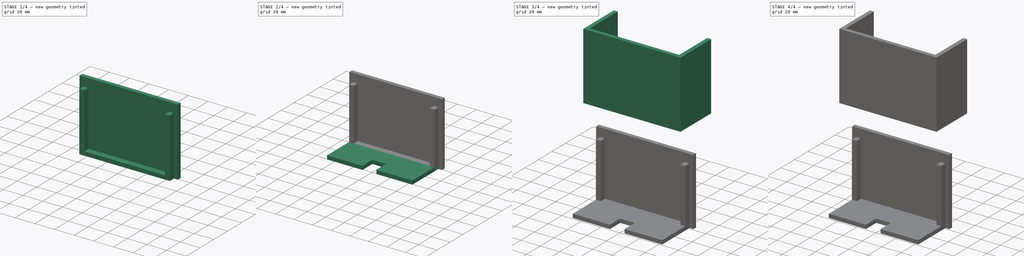
[diagram: build sequence overview — one tinted view per stage of 4, left to right]
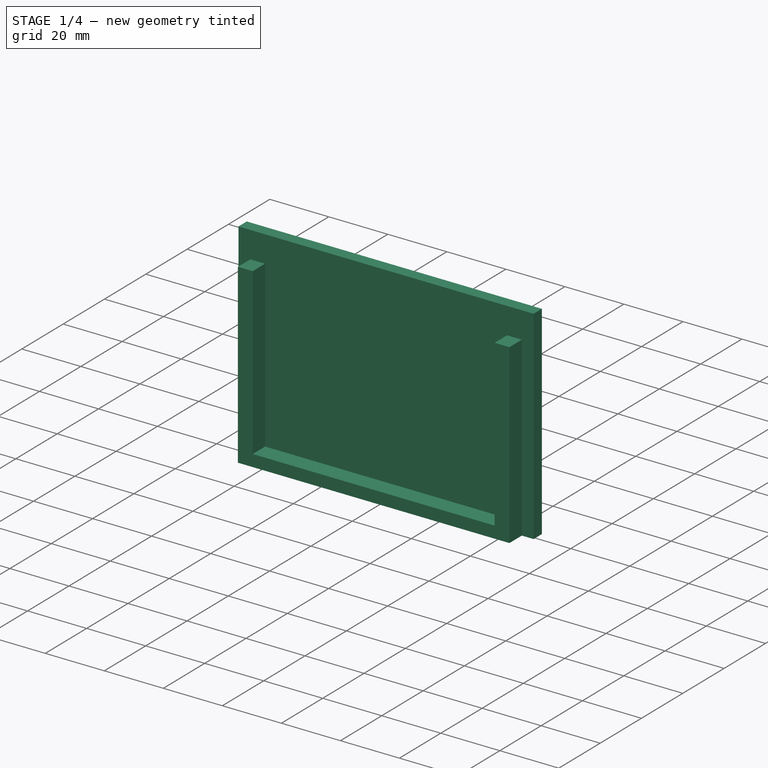
[diagram: stage 1 of 4 — iso view after this stage's code; geometry added in this stage tinted green]
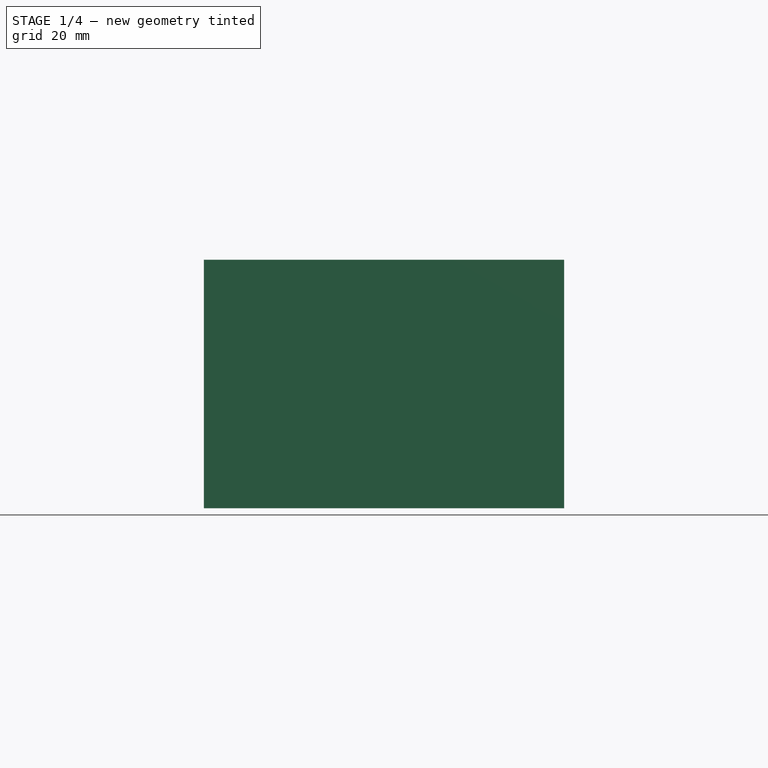
[diagram: stage 1 of 4 — front view after this stage's code; geometry added in this stage tinted green]
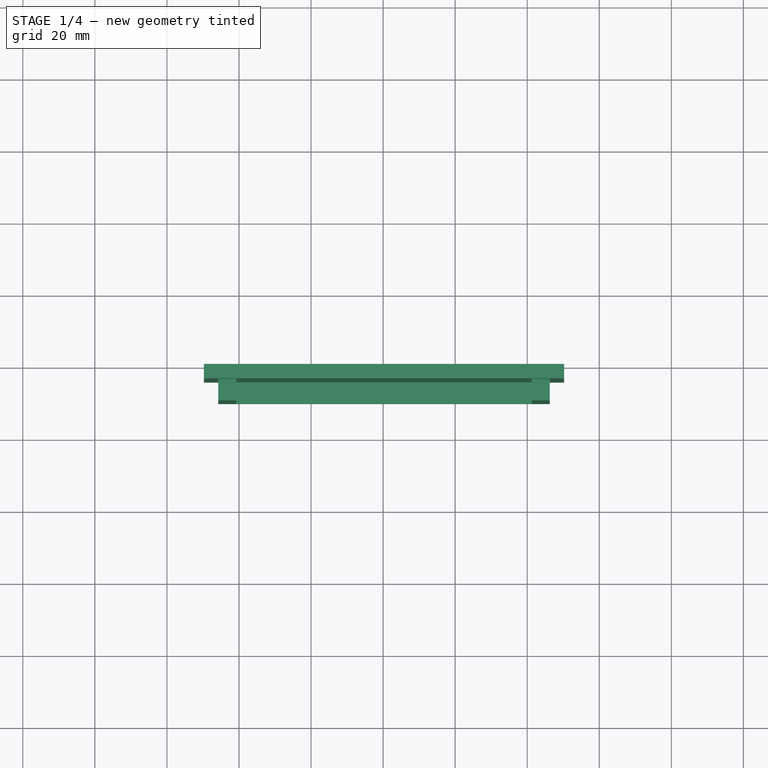
[diagram: stage 1 of 4 — top view after this stage's code; geometry added in this stage tinted green]
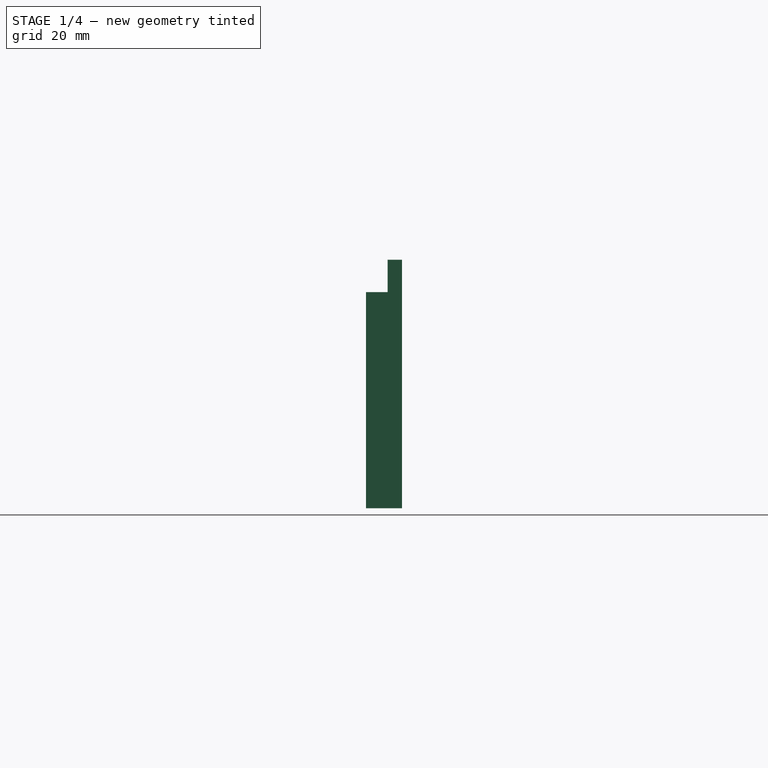
[diagram: stage 1 of 4 — right view after this stage's code; geometry added in this stage tinted green]
FCSTD DOCUMENT  (FreeCAD 0.18.4R)
Label: Arduino
License: All rights reserved
LicenseURL: http://en.wikipedia.org/wiki/All_rights_reserved
objects: Sketcher::SketchObject×9, PartDesign::Pad×5, PartDesign::Pocket×4, PartDesign::Body×2
note: 29 computed .brp shape members not serialized (recipe doc carries the construction recipe); baked Part::Feature solids carry a one-line shape summary decoded from their .brp

FEATURE [PartDesign::Body] Body  label="MainCase"
  Group = -> [Sketch,Pad,Sketch001,Pocket,Sketch002,Pad001,Sketch003,Pocket001,Sketch004,Pocket002]
  Origin = -> Origin
  Tip = -> Pocket002
FEATURE [Sketcher::SketchObject] Sketch005
  MapMode = 5
  Placement = pos=(0,0,0) rot=(1,0,0;1.5708rad)
  Support = -> [XZ_Plane001]
  sketch-geometry (4):
    g0: LineSegment StartX=50.249 StartY=-28.5383 StartZ=0 EndX=-49.751 EndY=-28.5383 EndZ=0
    g1: LineSegment StartX=-49.751 StartY=-28.5383 StartZ=0 EndX=-49.751 EndY=-97.5383 EndZ=0
    g2: LineSegment StartX=-49.751 StartY=-97.5383 StartZ=0 EndX=50.249 EndY=-97.5383 EndZ=0
    g3: LineSegment StartX=50.249 StartY=-97.5383 StartZ=0 EndX=50.249 EndY=-28.5383 EndZ=0
  constraints (10):
    c: Coincident(g0,g1)
    c: Coincident(g1,g2)
    c: Coincident(g2,g3)
    c: Coincident(g3,g0)
    c: Horizontal(g0)
    c: Horizontal(g2)
    c: Vertical(g1)
    c: Vertical(g3)
    c: DistanceX(g0,g0) = 100
    c: DistanceY(g1,g1) = 69
FEATURE [PartDesign::Pad] Pad002  label="TopCover"
  Length = 4
  Length2 = 100
  Placement = pos=(0,0,0) rot=(1,0,0;1.5708rad)
  Profile = -> Sketch005
  Type = 0
FEATURE [Sketcher::SketchObject] Sketch006
  ExternalGeometry = -> [Pad002]
  MapMode = 5
  Placement = pos=(0,-4,2.7e-15) rot=(1,0,0;1.5708rad)
  Support = -> [Pad002]
  sketch-geometry (12):
    g0: LineSegment StartX=-45.751 StartY=-37.5383 StartZ=0 EndX=-40.751 EndY=-37.5383 EndZ=0
    g1: LineSegment StartX=-40.751 StartY=-37.5383 StartZ=0 EndX=-40.751 EndY=-97.5383 EndZ=0
    g2: LineSegment StartX=-40.751 StartY=-97.5383 StartZ=0 EndX=-45.751 EndY=-97.5383 EndZ=0
    g3: LineSegment StartX=-45.751 StartY=-97.5383 StartZ=0 EndX=-45.751 EndY=-37.5383 EndZ=0
    g4: LineSegment StartX=41.249 StartY=-37.5383 StartZ=0 EndX=46.249 EndY=-37.5383 EndZ=0
    g5: LineSegment StartX=46.249 StartY=-37.5383 StartZ=0 EndX=46.249 EndY=-97.5383 EndZ=0
    g6: LineSegment StartX=46.249 StartY=-97.5383 StartZ=0 EndX=41.249 EndY=-97.5383 EndZ=0
    g7: LineSegment StartX=41.249 StartY=-97.5383 StartZ=0 EndX=41.249 EndY=-37.5383 EndZ=0
    g8: LineSegment StartX=-40.751 StartY=-97.5383 StartZ=0 EndX=41.249 EndY=-97.5383 EndZ=0
    g9: LineSegment StartX=41.249 StartY=-97.5383 StartZ=0 EndX=41.249 EndY=-93.5383 EndZ=0
    g10: LineSegment StartX=41.249 StartY=-93.5383 StartZ=0 EndX=-40.751 EndY=-93.5383 EndZ=0
    g11: LineSegment StartX=-40.751 StartY=-93.5383 StartZ=0 EndX=-40.751 EndY=-97.5383 EndZ=0
  constraints (35):
    c: Coincident(g0,g1)
    c: Coincident(g1,g2)
    c: Coincident(g2,g3)
    c: Coincident(g3,g0)
    c: Horizontal(g2)
    c: Vertical(g1)
    c: Vertical(g3)
    c: PointOnObject(g1,g-6)
    c: DistanceX(g0,g0) = 5
    c: DistanceX(g-4,g0) = 4
    c: Coincident(g4,g5)
    c: Coincident(g5,g6)
    c: Coincident(g6,g7)
    c: Coincident(g7,g4)
    c: Horizontal(g4)
    c: Horizontal(g6)
    c: Vertical(g5)
    c: Vertical(g7)
    c: PointOnObject(g5,g-6)
    c: Equal(g4,g0)
    c: DistanceX(g4,g-5) = 4
    c: Horizontal(g0,g0)
    c: Horizontal(g4,g0)
    c: DistanceY(g0,g-4) = 9
    c: Coincident(g8,g9)
    c: Coincident(g9,g10)
    c: Coincident(g10,g11)
    c: Coincident(g11,g8)
    c: Horizontal(g8)
    c: Horizontal(g10)
    c: Vertical(g9)
    c: Vertical(g11)
    c: Coincident(g8,g1)
    c: PointOnObject(g9,g7)
    c: DistanceY(g1,g10) = 4
FEATURE [PartDesign::Pad] Pad003  label="SideShallowCovers"
  BaseFeature = -> Pad002
  Length = 6
  Length2 = 100
  Placement = pos=(0,0,0) rot=(1,0,0;1.5708rad)
  Profile = -> Sketch006
  Type = 0
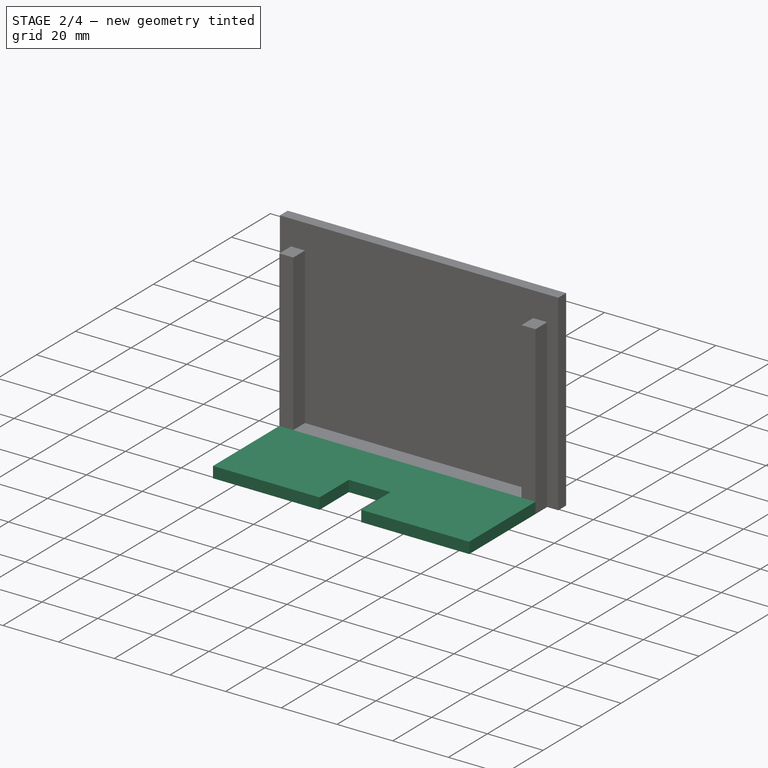
[diagram: stage 2 of 4 — iso view after this stage's code; geometry added in this stage tinted green]
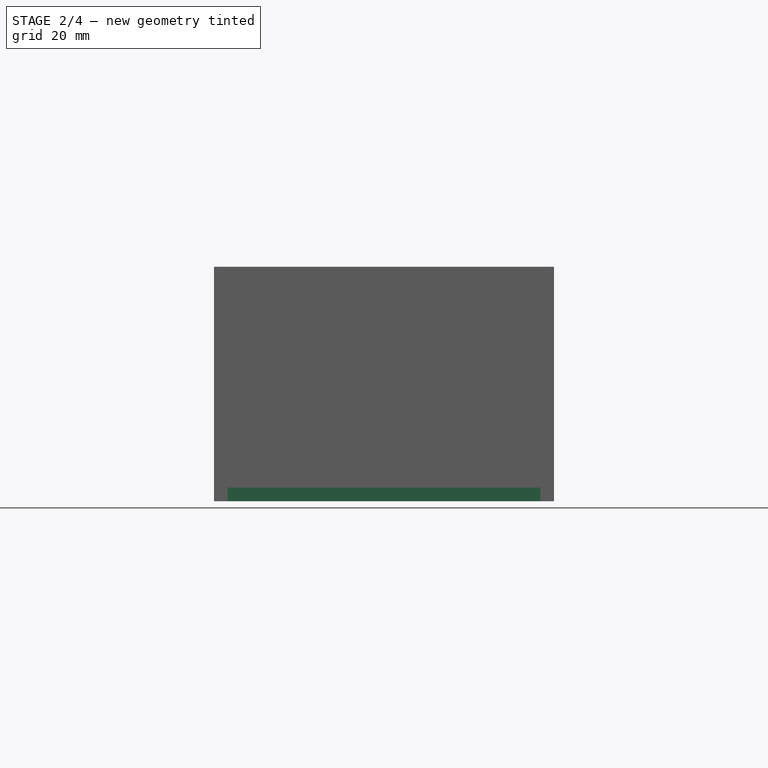
[diagram: stage 2 of 4 — front view after this stage's code; geometry added in this stage tinted green]
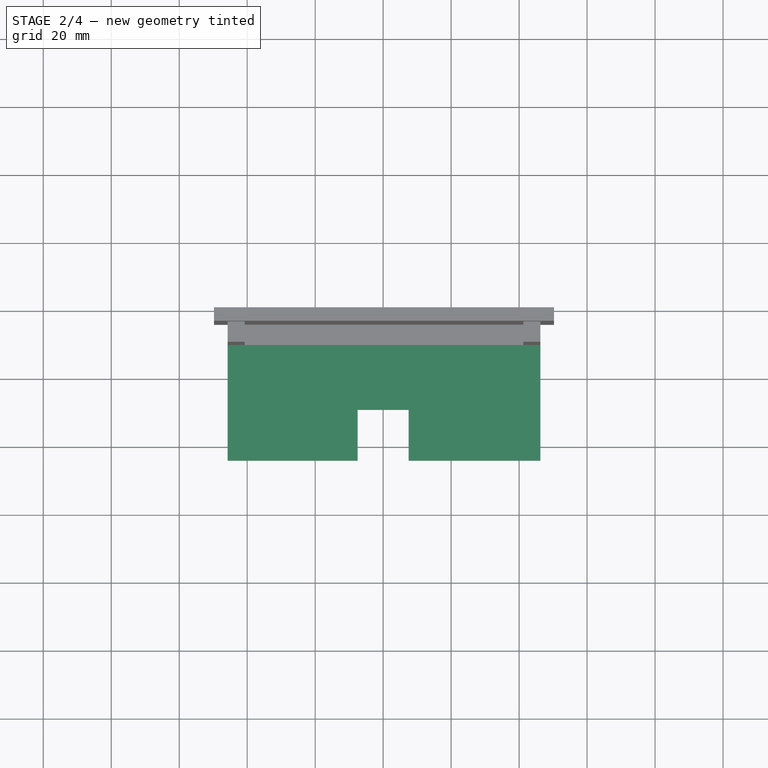
[diagram: stage 2 of 4 — top view after this stage's code; geometry added in this stage tinted green]
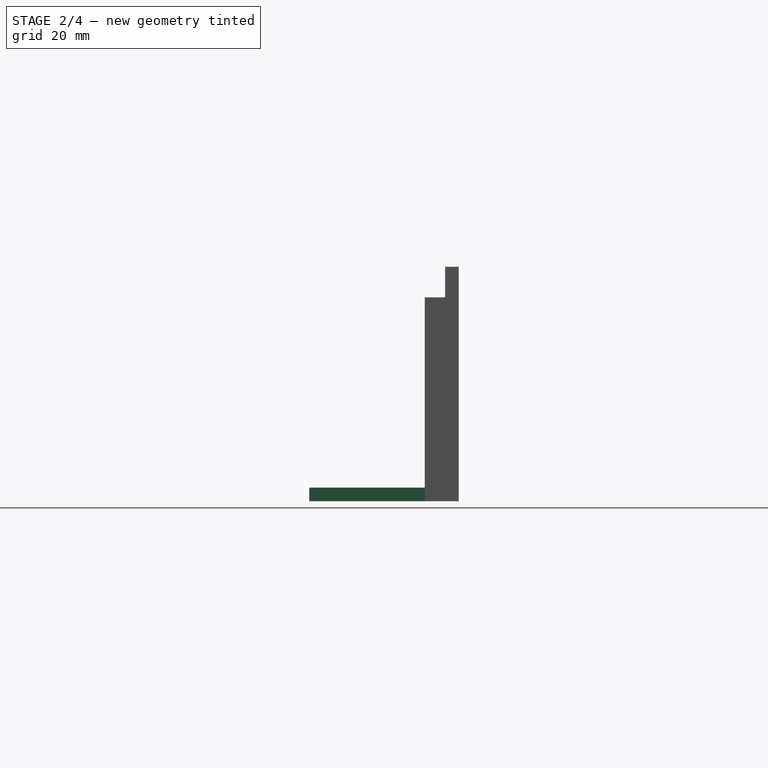
[diagram: stage 2 of 4 — right view after this stage's code; geometry added in this stage tinted green]
FEATURE [Sketcher::SketchObject] Sketch007
  ExternalGeometry = -> [Pad003]
  MapMode = 5
  Placement = pos=(0,-10,1.23e-14) rot=(1,0,0;1.5708rad)
  Support = -> [Pad003]
  sketch-geometry (4):
    g0: LineSegment StartX=-45.751 StartY=-97.5383 StartZ=0 EndX=46.249 EndY=-97.5383 EndZ=0
    g1: LineSegment StartX=46.249 StartY=-97.5383 StartZ=0 EndX=46.249 EndY=-93.5383 EndZ=0
    g2: LineSegment StartX=46.249 StartY=-93.5383 StartZ=0 EndX=-45.751 EndY=-93.5383 EndZ=0
    g3: LineSegment StartX=-45.751 StartY=-93.5383 StartZ=0 EndX=-45.751 EndY=-97.5383 EndZ=0
  constraints (11):
    c: Coincident(g0,g1)
    c: Coincident(g1,g2)
    c: Coincident(g2,g3)
    c: Coincident(g3,g0)
    c: Horizontal(g0)
    c: Horizontal(g2)
    c: Vertical(g1)
    c: Vertical(g3)
    c: Coincident(g0,g-3)
    c: PointOnObject(g1,g-6)
    c: Horizontal(g1,g-4)
FEATURE [PartDesign::Pad] Pad004  label="BackCover"
  BaseFeature = -> Pad003
  Length = 34
  Length2 = 100
  Placement = pos=(0,0,0) rot=(1,0,0;1.5708rad)
  Profile = -> Sketch007
  Type = 0
FEATURE [Sketcher::SketchObject] Sketch008
  ExternalGeometry = -> [Pad004]
  MapMode = 5
  Placement = pos=(0,-44,7.82e-14) rot=(1,0,0;1.5708rad)
  Support = -> [Pad004]
  sketch-geometry (4):
    g0: LineSegment StartX=-7.5 StartY=-93.5383 StartZ=0 EndX=7.5 EndY=-93.5383 EndZ=0
    g1: LineSegment StartX=7.5 StartY=-93.5383 StartZ=0 EndX=7.5 EndY=-97.5383 EndZ=0
    g2: LineSegment StartX=7.5 StartY=-97.5383 StartZ=0 EndX=-7.5 EndY=-97.5383 EndZ=0
    g3: LineSegment StartX=-7.5 StartY=-97.5383 StartZ=0 EndX=-7.5 EndY=-93.5383 EndZ=0
  constraints (11):
    c: Coincident(g0,g1)
    c: Coincident(g1,g2)
    c: Coincident(g2,g3)
    c: Coincident(g3,g0)
    c: Horizontal(g2)
    c: Vertical(g1)
    c: Vertical(g3)
    c: PointOnObject(g0,g-3)
    c: PointOnObject(g1,g-4)
    c: Symmetric(g0,g0,g-2)
    c: DistanceX(g0,g0) = 15
FEATURE [PartDesign::Pocket] Pocket003  label="WholeForCables"
  BaseFeature = -> Pad004
  Length = 15
  Length2 = 100
  Placement = pos=(0,0,0) rot=(1,0,0;1.5708rad)
  Profile = -> Sketch008
  Type = 0
FEATURE [PartDesign::Body] Body001  label="Cover"
  Group = -> [Sketch005,Pad002,Sketch006,Pad003,Sketch007,Pad004,Sketch008,Pocket003]
  Origin = -> Origin001
  Placement = pos=(3.4e-15,26,-27) rot=(0,1,0;3.14159rad)
  Tip = -> Pocket003
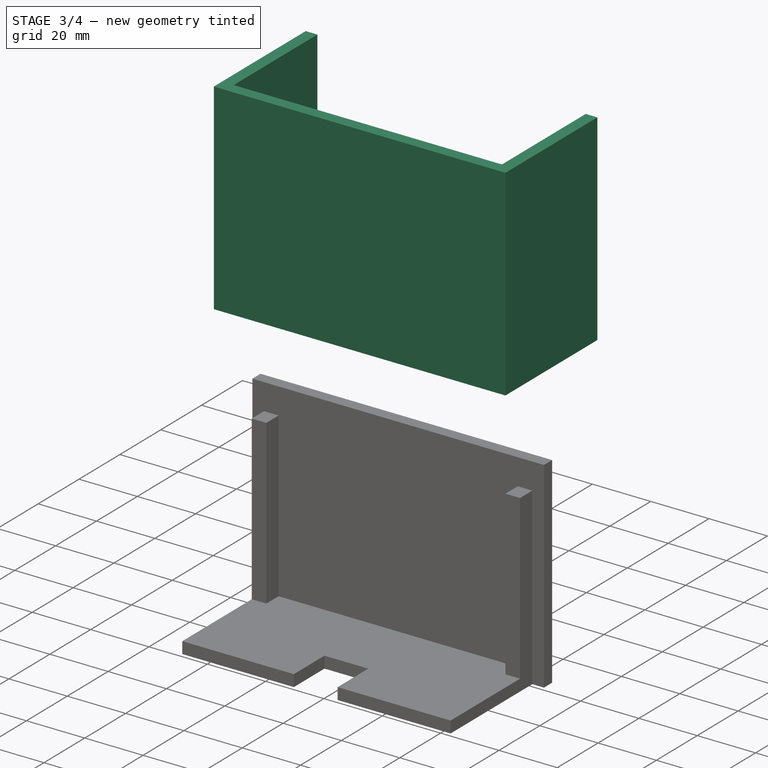
[diagram: stage 3 of 4 — iso view after this stage's code; geometry added in this stage tinted green]
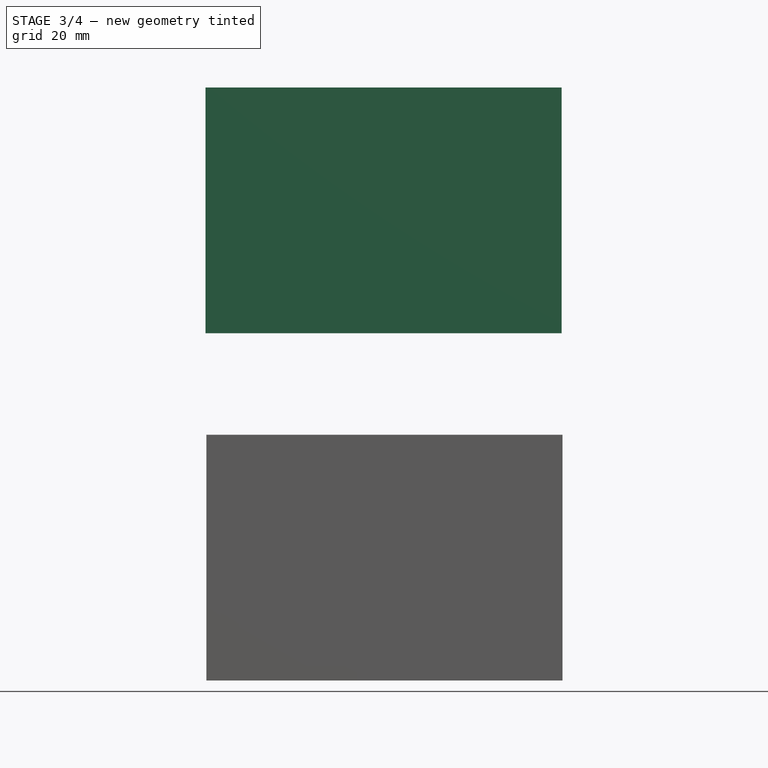
[diagram: stage 3 of 4 — front view after this stage's code; geometry added in this stage tinted green]
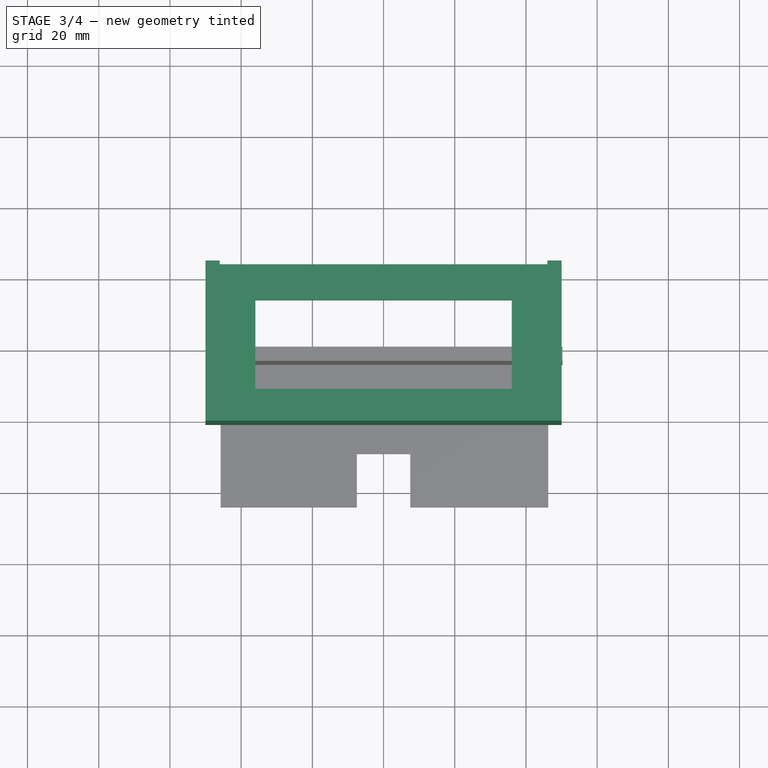
[diagram: stage 3 of 4 — top view after this stage's code; geometry added in this stage tinted green]
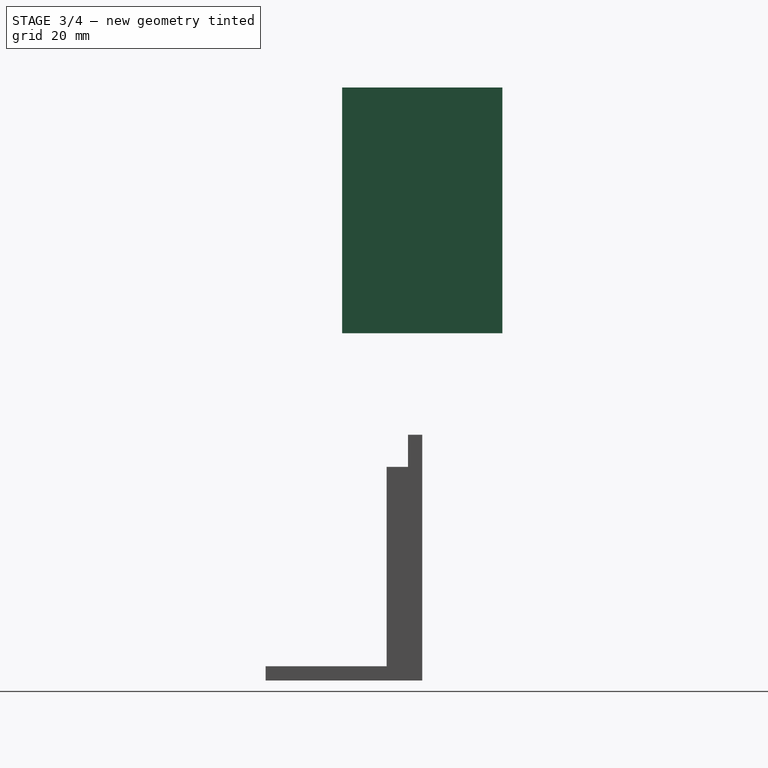
[diagram: stage 3 of 4 — right view after this stage's code; geometry added in this stage tinted green]
FEATURE [Sketcher::SketchObject] Sketch
  MapMode = 5
  Support = -> [XY_Plane]
  sketch-geometry (4):
    g0: LineSegment StartX=-50 StartY=22.5 StartZ=0 EndX=50 EndY=22.5 EndZ=0
    g1: LineSegment StartX=50 StartY=22.5 StartZ=0 EndX=50 EndY=-22.5 EndZ=0
    g2: LineSegment StartX=50 StartY=-22.5 StartZ=0 EndX=-50 EndY=-22.5 EndZ=0
    g3: LineSegment StartX=-50 StartY=-22.5 StartZ=0 EndX=-50 EndY=22.5 EndZ=0
  constraints (10):
    c: Coincident(g0,g1)
    c: Coincident(g1,g2)
    c: Coincident(g2,g3)
    c: Coincident(g3,g0)
    c: Horizontal(g2)
    c: Vertical(g1)
    c: DistanceX(g0,g0) = 100
    c: DistanceY(g1,g1) = 45
    c: Symmetric(g0,g0,g-2)
    c: Symmetric(g0,g2,g-1)
FEATURE [PartDesign::Pad] Pad  label="ScreenFrame"
  Length = 9
  Length2 = 100
  Profile = -> Sketch
  Type = 0
FEATURE [Sketcher::SketchObject] Sketch001
  MapMode = 5
  Placement = pos=(0,0,9) rot=(0,0,1;0rad)
  Support = -> [Pad]
  sketch-geometry (4):
    g0: LineSegment StartX=-36 StartY=12.5 StartZ=0 EndX=36 EndY=12.5 EndZ=0
    g1: LineSegment StartX=36 StartY=12.5 StartZ=0 EndX=36 EndY=-12.5 EndZ=0
    g2: LineSegment StartX=36 StartY=-12.5 StartZ=0 EndX=-36 EndY=-12.5 EndZ=0
    g3: LineSegment StartX=-36 StartY=-12.5 StartZ=0 EndX=-36 EndY=12.5 EndZ=0
  constraints (10):
    c: Coincident(g0,g1)
    c: Coincident(g1,g2)
    c: Coincident(g2,g3)
    c: Coincident(g3,g0)
    c: Horizontal(g2)
    c: Vertical(g1)
    c: DistanceX(g0,g0) = 72
    c: DistanceY(g3,g3) = 25
    c: Symmetric(g0,g0,g-2)
    c: Symmetric(g2,g0,g-1)
FEATURE [PartDesign::Pocket] Pocket  label="ScreenHole"
  BaseFeature = -> Pad
  Length = 5
  Length2 = 100
  Profile = -> Sketch001
  Type = 1
FEATURE [Sketcher::SketchObject] Sketch002
  ExternalGeometry = -> [Pocket]
  MapMode = 5
  Placement = pos=(0,0,9) rot=(0,0,1;0rad)
  Support = -> [Pocket]
  sketch-geometry (12):
    g0: LineSegment StartX=-50 StartY=-22.5 StartZ=0 EndX=50 EndY=-22.5 EndZ=0
    g1: LineSegment StartX=50 StartY=-22.5 StartZ=0 EndX=50 EndY=-18.5 EndZ=0
    g2: LineSegment StartX=50 StartY=-18.5 StartZ=0 EndX=-50 EndY=-18.5 EndZ=0
    g3: LineSegment StartX=-50 StartY=-18.5 StartZ=0 EndX=-50 EndY=-22.5 EndZ=0
    g4: LineSegment StartX=-50 StartY=22.5 StartZ=0 EndX=-46 EndY=22.5 EndZ=0
    g5: LineSegment StartX=-46 StartY=22.5 StartZ=0 EndX=-46 EndY=-18.5 EndZ=0
    g6: LineSegment StartX=-46 StartY=-18.5 StartZ=0 EndX=-50 EndY=-18.5 EndZ=0
    g7: LineSegment StartX=-50 StartY=-18.5 StartZ=0 EndX=-50 EndY=22.5 EndZ=0
    g8: LineSegment StartX=50 StartY=22.5 StartZ=0 EndX=46 EndY=22.5 EndZ=0
    g9: LineSegment StartX=46 StartY=22.5 StartZ=0 EndX=46 EndY=-18.5 EndZ=0
    g10: LineSegment StartX=46 StartY=-18.5 StartZ=0 EndX=50 EndY=-18.5 EndZ=0
    g11: LineSegment StartX=50 StartY=-18.5 StartZ=0 EndX=50 EndY=22.5 EndZ=0
  constraints (31):
    c: Coincident(g0,g1)
    c: Coincident(g1,g2)
    c: Coincident(g2,g3)
    c: Coincident(g3,g0)
    c: Horizontal(g0)
    c: Horizontal(g2)
    c: Vertical(g1)
    c: Vertical(g3)
    c: Coincident(g-5,g0)
    c: DistanceY(g3,g3) = 4
    c: Coincident(g4,g5)
    c: Coincident(g5,g6)
    c: Coincident(g6,g7)
    c: Coincident(g7,g4)
    c: Horizontal(g4)
    c: Horizontal(g6)
    c: Vertical(g5)
    c: Vertical(g7)
    c: Coincident(g8,g9)
    c: Coincident(g9,g10)
    c: Coincident(g10,g11)
    c: Coincident(g11,g8)
    c: Horizontal(g8)
    c: Horizontal(g10)
    c: Vertical(g9)
    c: Coincident(g1,g10)
    c: Coincident(g6,g2)
    c: DistanceX(g4,g4) = 4
    c: DistanceX(g8,g8) = 4
    c: Coincident(g4,g-4)
    c: Coincident(g8,g-5)
FEATURE [PartDesign::Pad] Pad001  label="BottomAndSideCovers"
  BaseFeature = -> Pocket
  Length = 60
  Length2 = 100
  Profile = -> Sketch002
  Type = 0
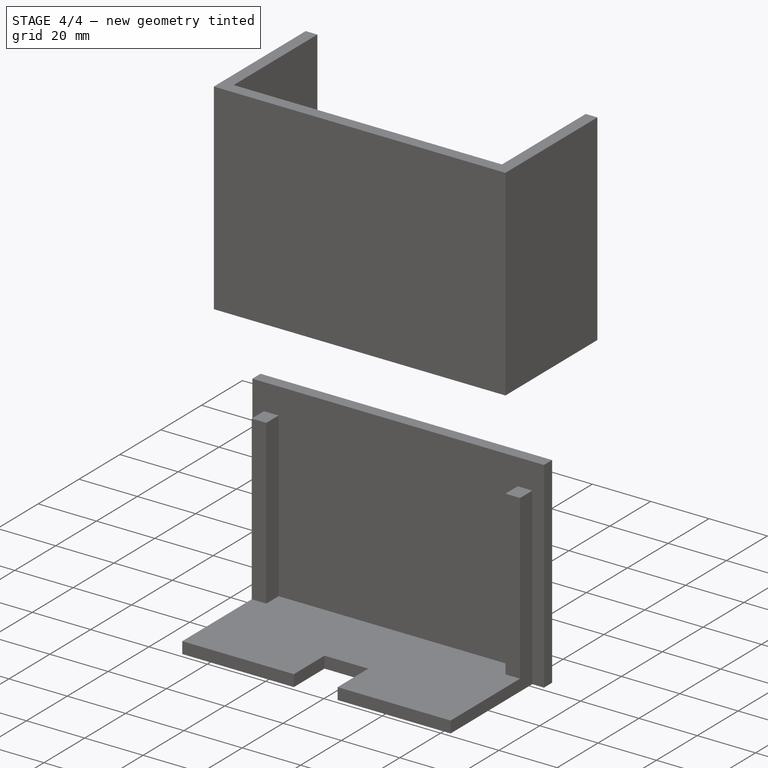
[diagram: stage 4 of 4 — iso view after this stage's code; geometry added in this stage tinted green]
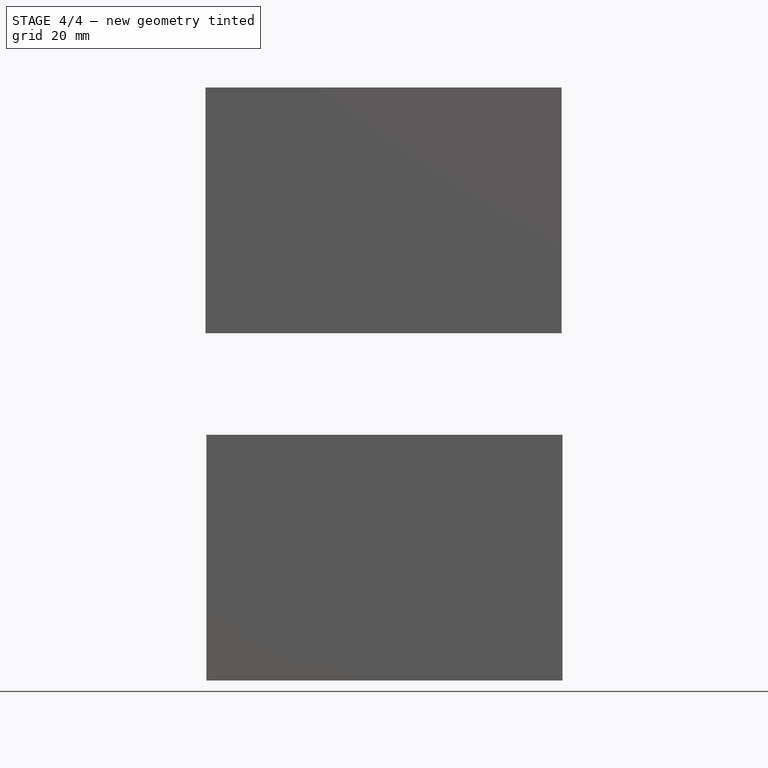
[diagram: stage 4 of 4 — front view after this stage's code; geometry added in this stage tinted green]
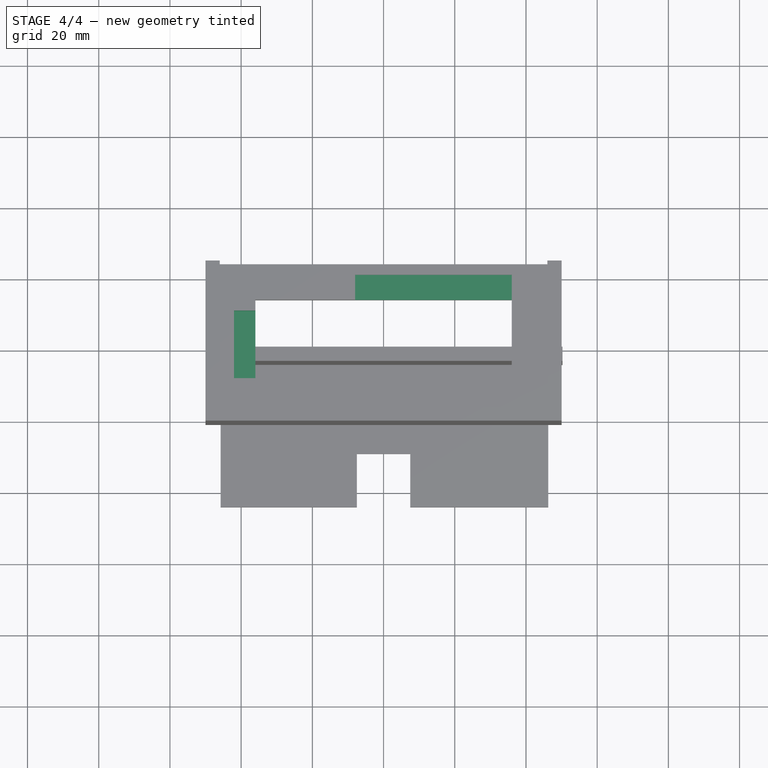
[diagram: stage 4 of 4 — top view after this stage's code; geometry added in this stage tinted green]
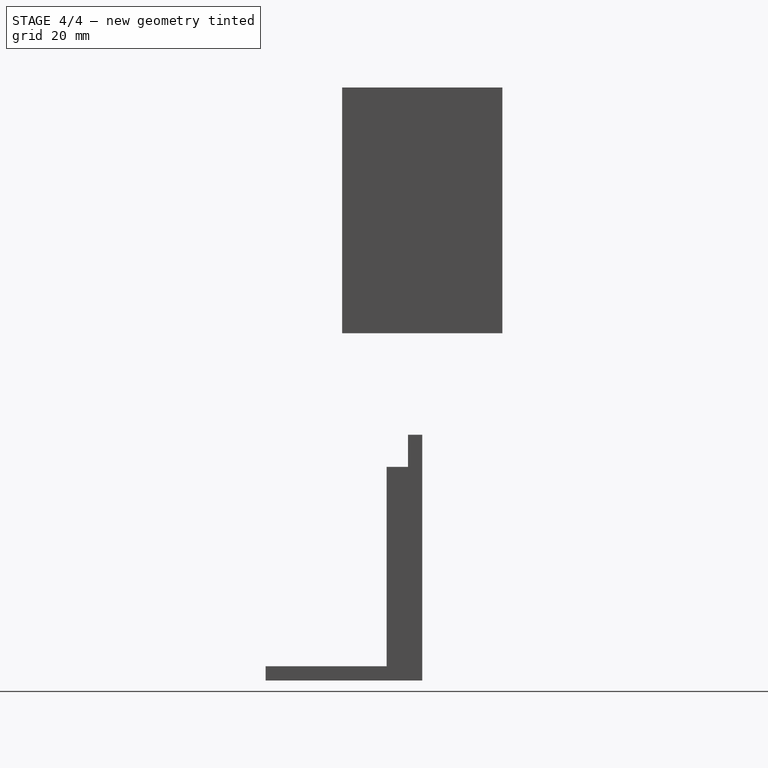
[diagram: stage 4 of 4 — right view after this stage's code; geometry added in this stage tinted green]
FEATURE [Sketcher::SketchObject] Sketch003
  ExternalGeometry = -> [Pad001]
  MapMode = 5
  Placement = pos=(0,0,9) rot=(0,0,1;0rad)
  Support = -> [Pad001]
  sketch-geometry (4):
    g0: LineSegment StartX=-36 StartY=9.5 StartZ=0 EndX=-42 EndY=9.5 EndZ=0
    g1: LineSegment StartX=-42 StartY=9.5 StartZ=0 EndX=-42 EndY=-9.5 EndZ=0
    g2: LineSegment StartX=-42 StartY=-9.5 StartZ=0 EndX=-36 EndY=-9.5 EndZ=0
    g3: LineSegment StartX=-36 StartY=-9.5 StartZ=0 EndX=-36 EndY=9.5 EndZ=0
  constraints (10):
    c: Coincident(g0,g1)
    c: Coincident(g1,g2)
    c: Coincident(g2,g3)
    c: Coincident(g3,g0)
    c: Horizontal(g0)
    c: Horizontal(g2)
    c: Tangent(g-3,g3)
    c: Symmetric(g0,g1,g-1)
    c: DistanceY(g1,g1) = 19
    c: DistanceX(g0,g0) = 6
FEATURE [PartDesign::Pocket] Pocket001  label="PocketForBacklight"
  BaseFeature = -> Pad001
  Length = 4
  Length2 = 100
  Profile = -> Sketch003
  Type = 0
FEATURE [Sketcher::SketchObject] Sketch004
  ExternalGeometry = -> [Pocket001]
  MapMode = 5
  Placement = pos=(0,0,9) rot=(0,0,1;0rad)
  Support = -> [Pocket001]
  sketch-geometry (4):
    g0: LineSegment StartX=36 StartY=12.5 StartZ=0 EndX=-8 EndY=12.5 EndZ=0
    g1: LineSegment StartX=-8 StartY=12.5 StartZ=0 EndX=-8 EndY=19.5 EndZ=0
    g2: LineSegment StartX=-8 StartY=19.5 StartZ=0 EndX=36 EndY=19.5 EndZ=0
    g3: LineSegment StartX=36 StartY=19.5 StartZ=0 EndX=36 EndY=12.5 EndZ=0
  constraints (11):
    c: Coincident(g0,g1)
    c: Coincident(g1,g2)
    c: Coincident(g2,g3)
    c: Coincident(g3,g0)
    c: Horizontal(g0)
    c: Horizontal(g2)
    c: Vertical(g1)
    c: Vertical(g3)
    c: DistanceY(g3,g3) = 7
    c: DistanceX(g2,g2) = 44
    c: Coincident(g0,g-3)
FEATURE [PartDesign::Pocket] Pocket002  label="PocketForTopConnectors"
  BaseFeature = -> Pocket001
  Length = 3
  Length2 = 100
  Profile = -> Sketch004
  Type = 0
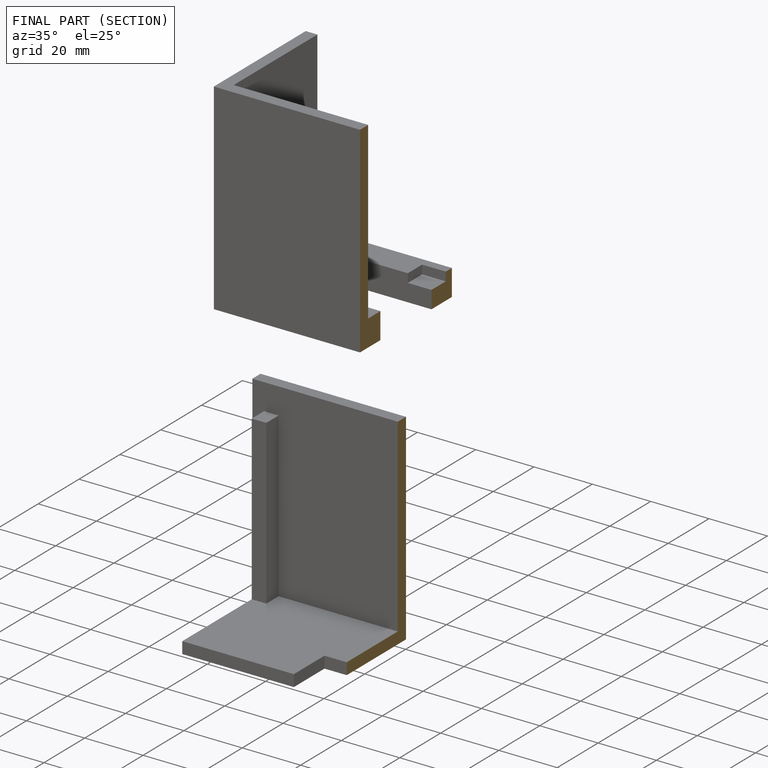
[diagram: finished part — half-section view (interior)]
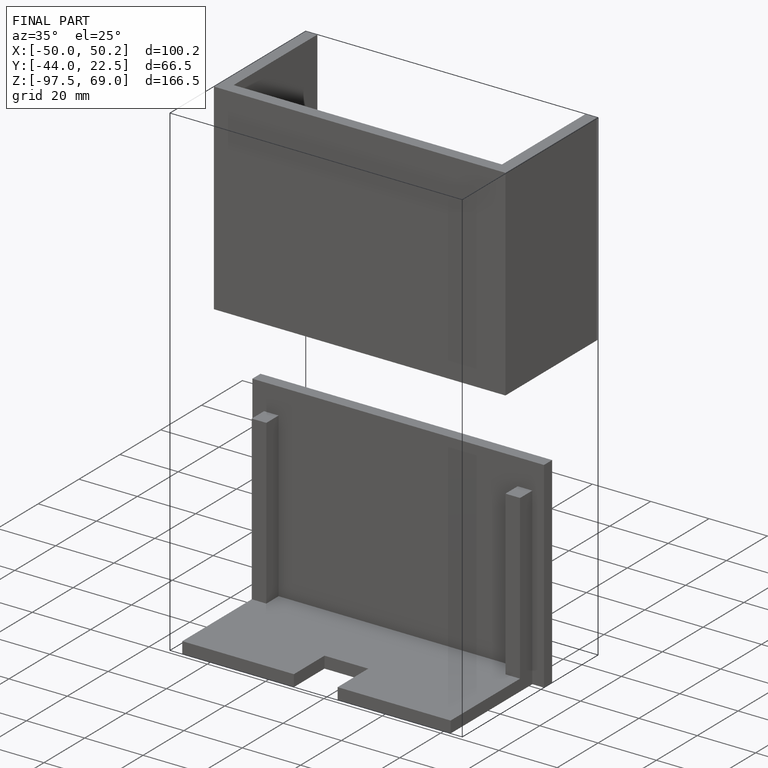
[diagram: finished part — iso view with bounding-box wireframe]
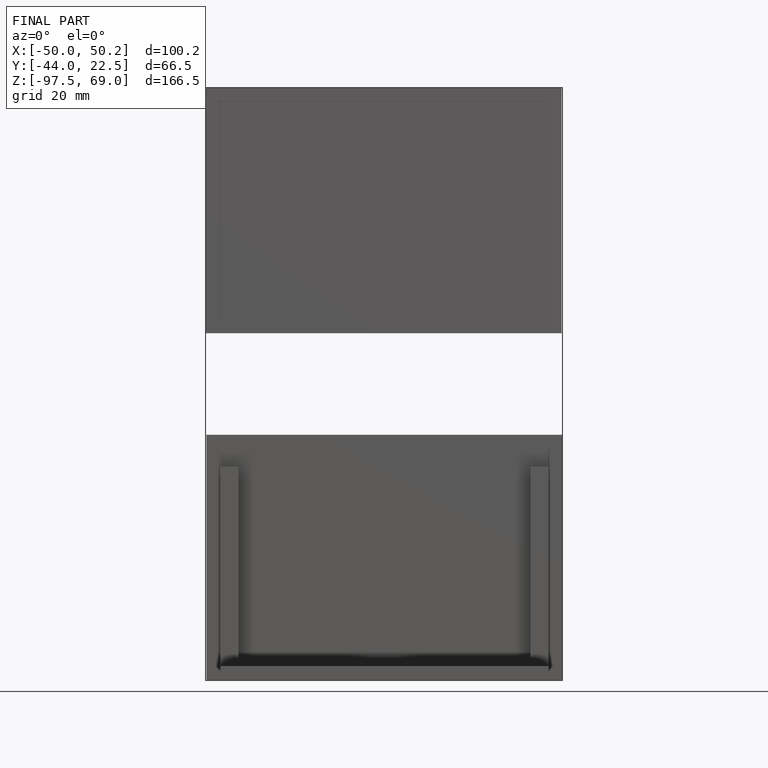
[diagram: finished part — front view with bounding-box wireframe]
